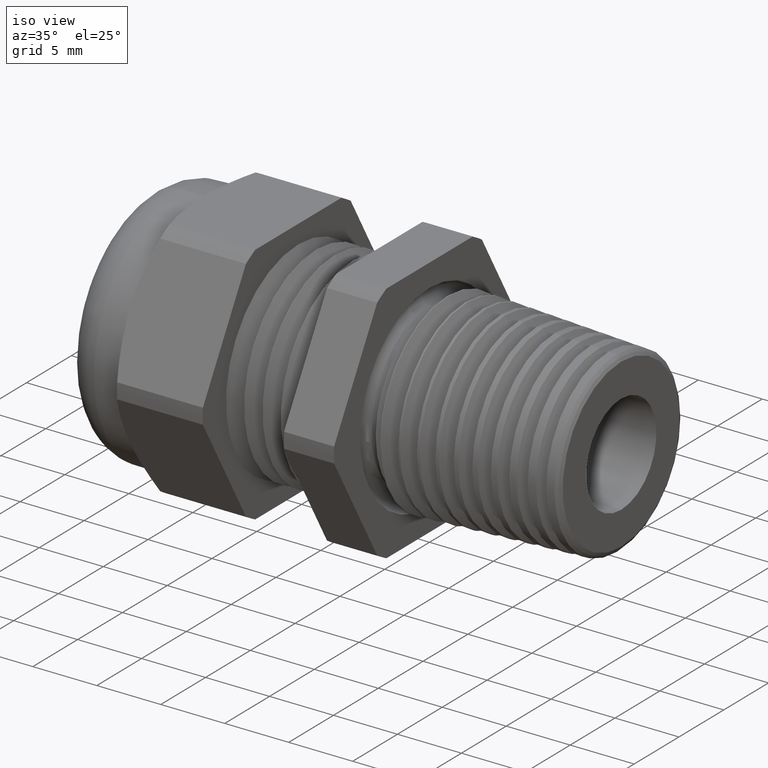
[diagram: clean part render]
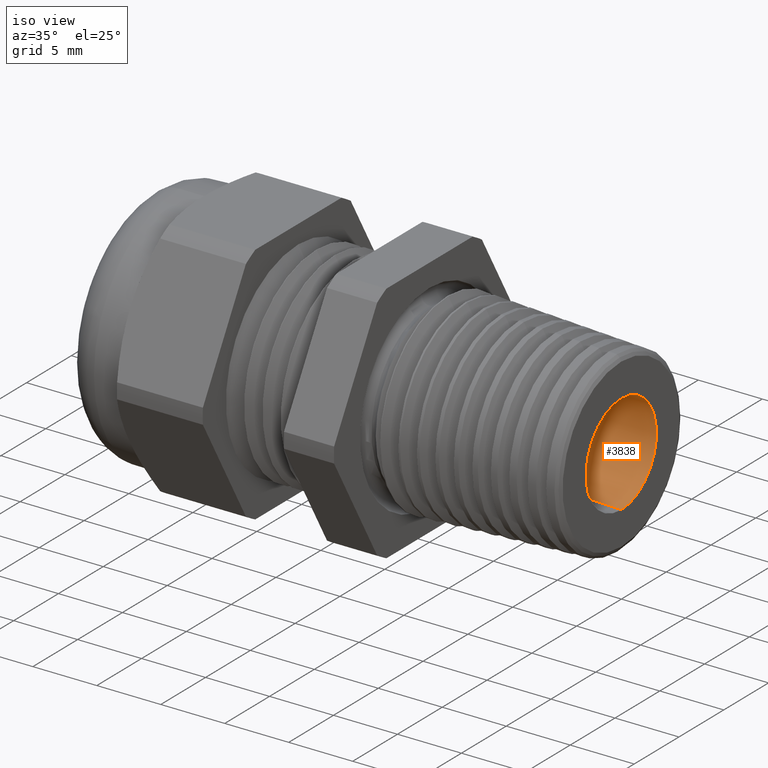
[diagram: same view with one face highlighted and labeled with its STEP entity id]
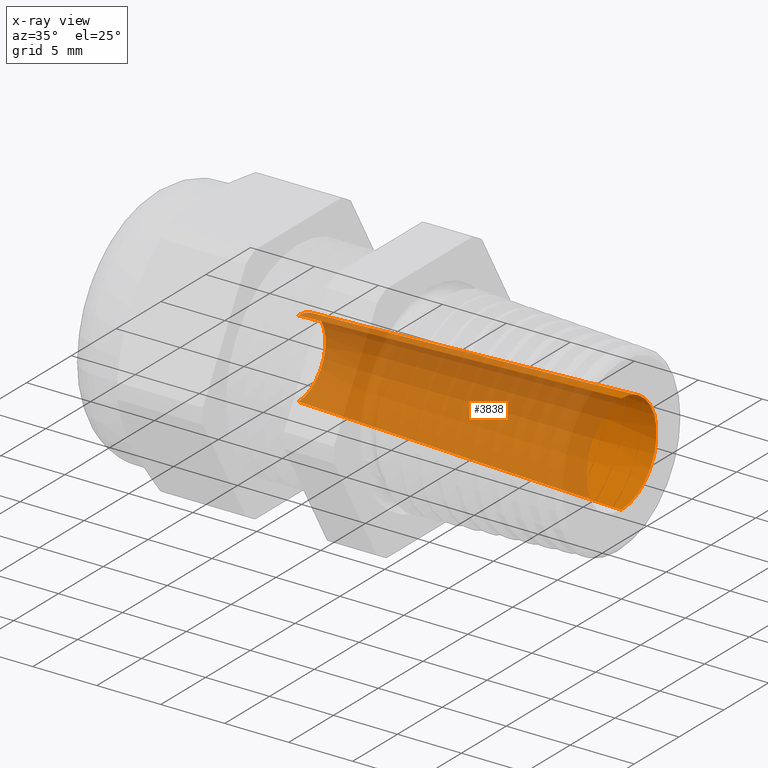
[diagram: x-ray of the same camera — body ghosted, the highlighted face saturated]
A machine part, iso view. The second image highlights one B-rep face of the part: STEP entity #3838.
The next image is the same camera in x-ray: the body ghosted, the highlighted face saturated — about 82% of this face is hidden behind the body in this view.
In plain terms, the highlighted conical surface has half-angle 2 deg.
Its self-contained STEP definition (entity closure, byte-faithful):
#718 = DIRECTION ( 'NONE',  ( 0.0000000000000000000, 0.0000000000000000000, 1.000000000000000000 ) ) ;
#719 = DIRECTION ( 'NONE',  ( -1.000000000000000000, -0.0000000000000000000, -0.0000000000000000000 ) ) ;
#720 = CARTESIAN_POINT ( 'NONE',  ( 0.5899999999999999700, 0.0000000000000000000, 0.0000000000000000000 ) ) ;
#721 = AXIS2_PLACEMENT_3D ( 'NONE', #720, #719, #718 ) ;
#722 = CIRCLE ( 'NONE', #721, 0.1547025146824250500 ) ;
#916 = LINE ( 'NONE', #977, #976 ) ;
#929 = CARTESIAN_POINT ( 'NONE',  ( -0.4037499999999999400, 1.469527624586852900E-017, -0.1200000000000000400 ) ) ;
#930 = CARTESIAN_POINT ( 'NONE',  ( 0.5899999999999999700, 0.0000000000000000000, -0.1547025146824250500 ) ) ;
#958 = CARTESIAN_POINT ( 'NONE',  ( 0.5899999999999999700, 1.894496824323973100E-017, 0.1547025146824250500 ) ) ;
#964 = DIRECTION ( 'NONE',  ( 0.9993908270190957600, 0.0000000000000000000, -0.03489949670250170500 ) ) ;
#965 = VECTOR ( 'NONE', #964, 39.37007874015748900 ) ;
#966 = CARTESIAN_POINT ( 'NONE',  ( -0.4037499999999999400, 0.0000000000000000000, -0.1200000000000000200 ) ) ;
#967 = LINE ( 'NONE', #966, #965 ) ;
#974 = CARTESIAN_POINT ( 'NONE',  ( -0.4037499999999999400, 0.0000000000000000000, 0.1200000000000000200 ) ) ;
#975 = DIRECTION ( 'NONE',  ( 0.9993908270190957600, 4.273814540708668800E-018, 0.03489949670250170500 ) ) ;
#976 = VECTOR ( 'NONE', #975, 39.37007874015748900 ) ;
#977 = CARTESIAN_POINT ( 'NONE',  ( -0.4037499999999999400, 1.469527624586852900E-017, 0.1200000000000000200 ) ) ;
#2229 = DIRECTION ( 'NONE',  ( 0.0000000000000000000, 0.0000000000000000000, 1.000000000000000000 ) ) ;
#2230 = DIRECTION ( 'NONE',  ( -1.000000000000000000, -0.0000000000000000000, -0.0000000000000000000 ) ) ;
#2231 = CARTESIAN_POINT ( 'NONE',  ( -0.4037499999999999400, 0.0000000000000000000, 0.0000000000000000000 ) ) ;
#2232 = AXIS2_PLACEMENT_3D ( 'NONE', #2231, #2230, #2229 ) ;
#2233 = CIRCLE ( 'NONE', #2232, 0.1200000000000000200 ) ;
#2252 = DIRECTION ( 'NONE',  ( 0.0000000000000000000, 0.0000000000000000000, -1.000000000000000000 ) ) ;
#2253 = DIRECTION ( 'NONE',  ( 1.000000000000000000, 0.0000000000000000000, 0.0000000000000000000 ) ) ;
#2254 = CARTESIAN_POINT ( 'NONE',  ( -0.4037499999999999400, 0.0000000000000000000, 0.0000000000000000000 ) ) ;
#2255 = AXIS2_PLACEMENT_3D ( 'NONE', #2254, #2253, #2252 ) ;
#2256 = CONICAL_SURFACE ( 'NONE', #2255, 0.1200000000000000200, 0.03490658503988732600 ) ;
#2258 = FACE_OUTER_BOUND ( 'NONE', #3837, .T. ) ;
#2947 = EDGE_CURVE ( 'NONE', #3075, #3055, #722, .T. ) ;
#3055 = VERTEX_POINT ( 'NONE', #930 ) ;
#3056 = VERTEX_POINT ( 'NONE', #929 ) ;
#3063 = EDGE_CURVE ( 'NONE', #3064, #3075, #916, .T. ) ;
#3064 = VERTEX_POINT ( 'NONE', #974 ) ;
#3067 = EDGE_CURVE ( 'NONE', #3056, #3055, #967, .T. ) ;
#3075 = VERTEX_POINT ( 'NONE', #958 ) ;
#3807 = EDGE_CURVE ( 'NONE', #3064, #3056, #2233, .T. ) ;
#3818 = ORIENTED_EDGE ( 'NONE', *, *, #3807, .T. ) ;
#3819 = ORIENTED_EDGE ( 'NONE', *, *, #3067, .T. ) ;
#3821 = ORIENTED_EDGE ( 'NONE', *, *, #2947, .F. ) ;
#3832 = ORIENTED_EDGE ( 'NONE', *, *, #3063, .F. ) ;
#3837 = EDGE_LOOP ( 'NONE', ( #3832, #3818, #3819, #3821 ) ) ;
#3838 = ADVANCED_FACE ( 'NONE', ( #2258 ), #2256, .F. ) ;